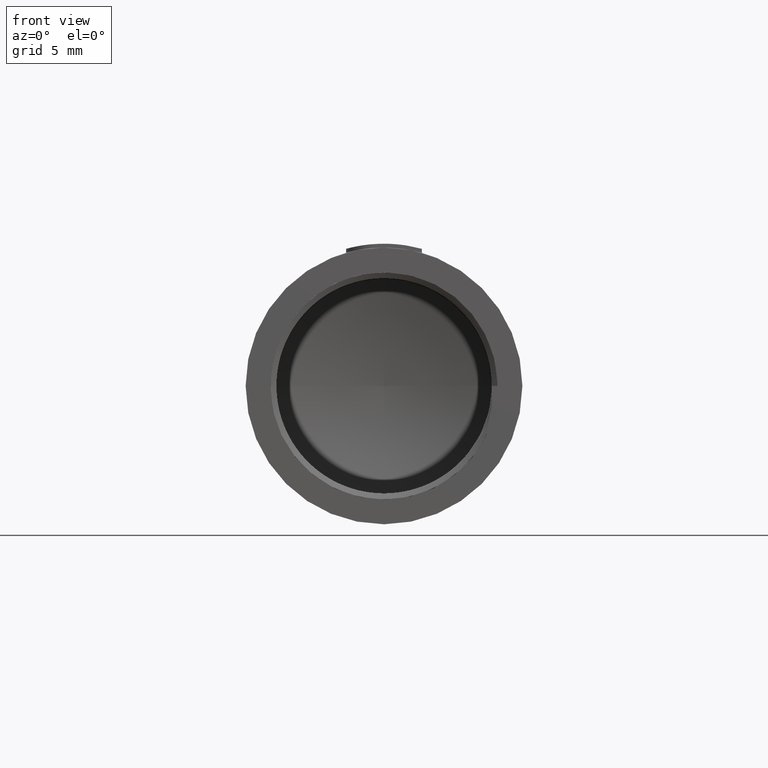
[diagram: clean part render]
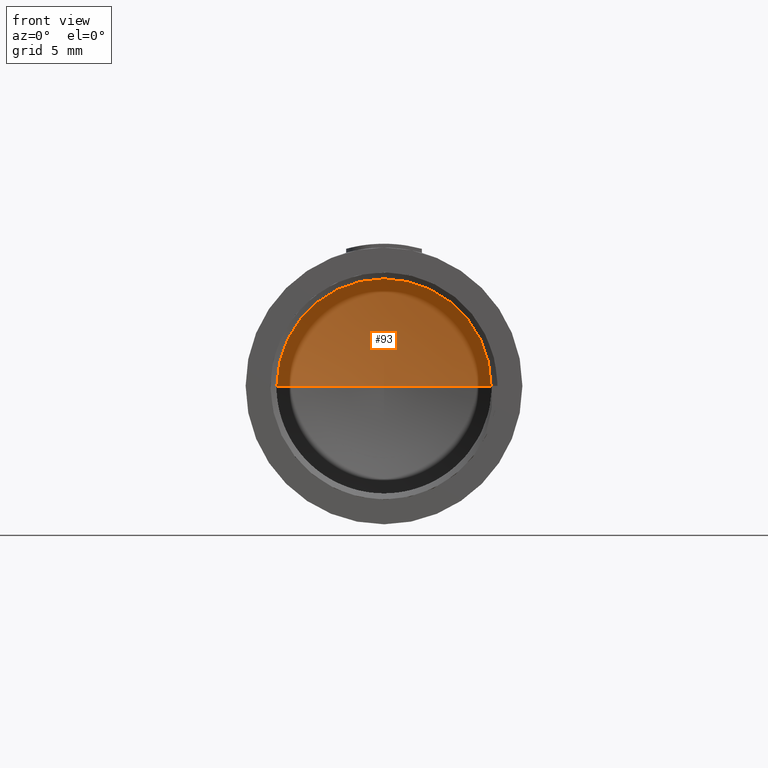
[diagram: same view with one face highlighted and labeled with its STEP entity id]
A machine part, front view. The second image highlights one B-rep face of the part: STEP entity #93.
In plain terms, the highlighted toroidal blend (fillet) surface has major radius 0.2497 mm and minor (blend) radius 20 mm.
Its self-contained STEP definition (entity closure, byte-faithful):
#93=ADVANCED_FACE('',(#187),#188,.F.);
#187=FACE_OUTER_BOUND('',#1994,.T.);
#188=TOROIDAL_SURFACE('',#1995,-0.249740114349275,20.0);
#1994=EDGE_LOOP('',(#2206,#2207,#2208));
#1995=AXIS2_PLACEMENT_3D('',#2209,#2210,#2211);
#2206=ORIENTED_EDGE('',*,*,#2850,.F.);
#2207=ORIENTED_EDGE('',*,*,#2851,.F.);
#2208=ORIENTED_EDGE('',*,*,#2837,.T.);
#2209=CARTESIAN_POINT('',(0.0,11.0015593139044,0.0));
#2210=DIRECTION('',(0.0,-1.0,0.0));
#2211=DIRECTION('',(1.0,0.0,-6.12323399573677E-17));
#2837=EDGE_CURVE('',#3055,#3059,#3061,.T.);
#2850=EDGE_CURVE('',#3082,#3059,#3083,.T.);
#2851=EDGE_CURVE('',#3055,#3082,#3084,.T.);
#3055=VERTEX_POINT('',#4241);
#3059=VERTEX_POINT('',#4245);
#3061=CIRCLE('',#4247,5.64742923370126);
#3082=VERTEX_POINT('',#4272);
#3083=CIRCLE('',#4273,20.0);
#3084=CIRCLE('',#4274,20.0);
#4241=CARTESIAN_POINT('',(5.64742923370126,30.1123780739788,-3.45805306723172E-16));
#4245=CARTESIAN_POINT('',(-5.64742923370126,30.1123780739788,1.03741592016952E-15));
#4247=AXIS2_PLACEMENT_3D('',#4697,#4698,#4699);
#4272=CARTESIAN_POINT('',(0.0,31.0,0.0));
#4273=AXIS2_PLACEMENT_3D('',#4728,#4729,#4730);
#4274=AXIS2_PLACEMENT_3D('',#4731,#4732,#4733);
#4697=CARTESIAN_POINT('',(0.0,30.1123780739788,0.0));
#4698=DIRECTION('',(0.0,-1.0,0.0));
#4699=DIRECTION('',(1.0,0.0,-6.12323399573677E-17));
#4728=CARTESIAN_POINT('',(0.249740114349275,11.0015593139044,-4.587651474848E-17));
#4729=DIRECTION('',(1.83697019872103E-16,0.0,1.0));
#4730=DIRECTION('',(-1.0,0.0,1.83697019872103E-16));
#4731=CARTESIAN_POINT('',(-0.249740114349275,11.0015593139044,4.587651474848E-17));
#4732=DIRECTION('',(1.83697019872103E-16,0.0,1.0));
#4733=DIRECTION('',(1.0,-0.0,-1.83697019872103E-16));